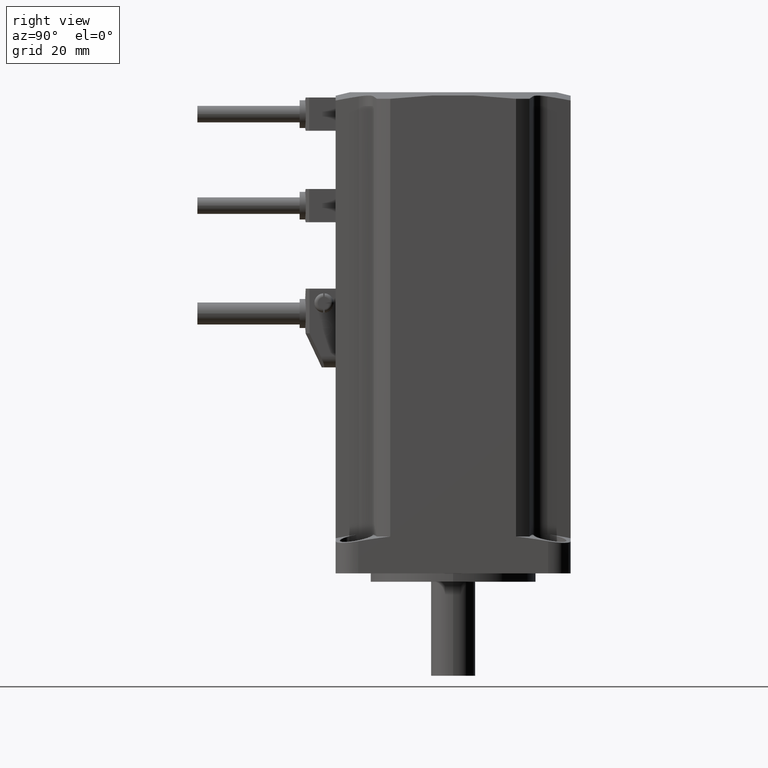
[diagram: clean part render]
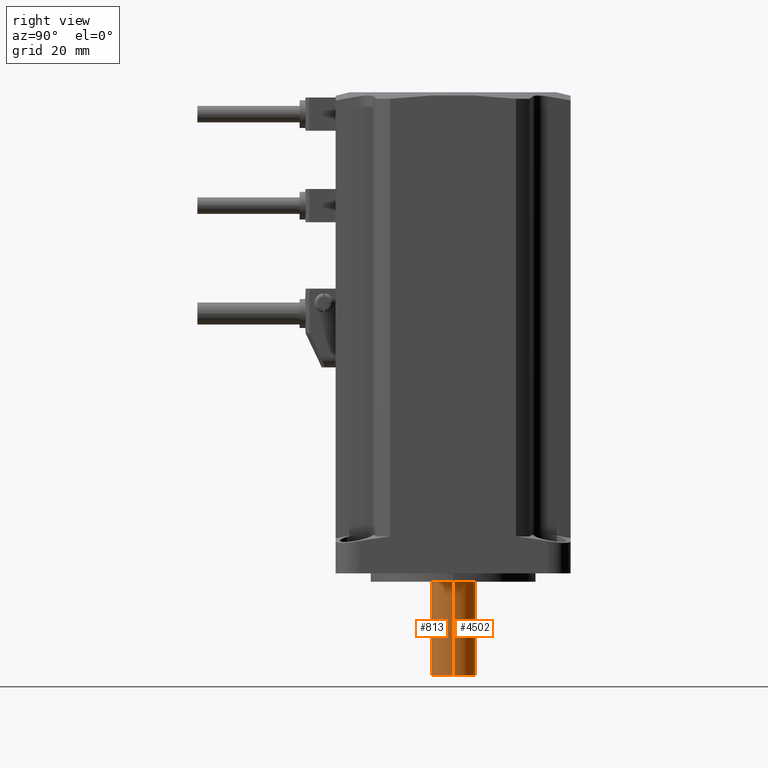
[diagram: same view with one multi-face feature highlighted, each face labeled with its STEP entity id]
A machine part, right view. The highlighted faces form ONE feature: a constant-radius fillet chain: 2 tangent blend faces with common blend radius 8 mm. The faces share edges in the B-rep.
Their STEP definitions:
[1] entity #813 (Cylinder):
#60 = CARTESIAN_POINT ( 'NONE',  ( 7.999999999999992895, 9.797174393178817769E-16, -37.00000000000000000 ) ) ;
#80 = LINE ( 'NONE', #4063, #1380 ) ;
#174 = EDGE_CURVE ( 'NONE', #2066, #3979, #2202, .T. ) ;
#230 = VERTEX_POINT ( 'NONE', #2672 ) ;
#255 = ORIENTED_EDGE ( 'NONE', *, *, #1441, .F. ) ;
#362 = ORIENTED_EDGE ( 'NONE', *, *, #3194, .T. ) ;
#552 = CARTESIAN_POINT ( 'NONE',  ( 0.0000000000000000000, 0.0000000000000000000, -3.000000000000002665 ) ) ;
#677 = DIRECTION ( 'NONE',  ( -1.000000000000000000, 0.0000000000000000000, 0.0000000000000000000 ) ) ;
#722 = DIRECTION ( 'NONE',  ( -0.0000000000000000000, -0.0000000000000000000, -1.000000000000000000 ) ) ;
#813 = ADVANCED_FACE ( 'NONE', ( #2717 ), #1077, .T. ) ;
#1004 = DIRECTION ( 'NONE',  ( 1.000000000000000000, 0.0000000000000000000, 0.0000000000000000000 ) ) ;
#1043 = DIRECTION ( 'NONE',  ( -1.000000000000000000, 0.0000000000000000000, 0.0000000000000000000 ) ) ;
#1054 = CIRCLE ( 'NONE', #3583, 7.999999999999992895 ) ;
#1077 = CYLINDRICAL_SURFACE ( 'NONE', #3373, 7.999999999999992895 ) ;
#1380 = VECTOR ( 'NONE', #4091, 1000.000000000000000 ) ;
#1381 = LINE ( 'NONE', #3472, #1444 ) ;
#1441 = EDGE_CURVE ( 'NONE', #3979, #3446, #1381, .T. ) ;
#1444 = VECTOR ( 'NONE', #2624, 1000.000000000000000 ) ;
#2066 = VERTEX_POINT ( 'NONE', #2391 ) ;
#2202 = CIRCLE ( 'NONE', #2966, 7.999999999999992895 ) ;
#2391 = CARTESIAN_POINT ( 'NONE',  ( -7.999999999999992895, 0.0000000000000000000, -3.000000000000002665 ) ) ;
#2459 = ORIENTED_EDGE ( 'NONE', *, *, #4158, .F. ) ;
#2624 = DIRECTION ( 'NONE',  ( -0.0000000000000000000, -0.0000000000000000000, -1.000000000000000000 ) ) ;
#2672 = CARTESIAN_POINT ( 'NONE',  ( -7.999999999999992895, 0.0000000000000000000, -37.00000000000000000 ) ) ;
#2693 = CARTESIAN_POINT ( 'NONE',  ( 0.0000000000000000000, 0.0000000000000000000, -52.95858389667363042 ) ) ;
#2717 = FACE_OUTER_BOUND ( 'NONE', #2944, .T. ) ;
#2944 = EDGE_LOOP ( 'NONE', ( #255, #4543, #362, #2459 ) ) ;
#2966 = AXIS2_PLACEMENT_3D ( 'NONE', #552, #3759, #1004 ) ;
#3194 = EDGE_CURVE ( 'NONE', #2066, #230, #80, .T. ) ;
#3373 = AXIS2_PLACEMENT_3D ( 'NONE', #2693, #4313, #677 ) ;
#3446 = VERTEX_POINT ( 'NONE', #60 ) ;
#3472 = CARTESIAN_POINT ( 'NONE',  ( 7.999999999999992895, 9.797174393178817769E-16, -52.95858389667363042 ) ) ;
#3583 = AXIS2_PLACEMENT_3D ( 'NONE', #4676, #722, #1043 ) ;
#3759 = DIRECTION ( 'NONE',  ( 0.0000000000000000000, 0.0000000000000000000, 1.000000000000000000 ) ) ;
#3979 = VERTEX_POINT ( 'NONE', #4089 ) ;
#4063 = CARTESIAN_POINT ( 'NONE',  ( -7.999999999999992895, 0.0000000000000000000, -52.95858389667363042 ) ) ;
#4089 = CARTESIAN_POINT ( 'NONE',  ( 7.999999999999992895, 9.797174393178817769E-16, -3.000000000000002665 ) ) ;
#4091 = DIRECTION ( 'NONE',  ( -0.0000000000000000000, -0.0000000000000000000, -1.000000000000000000 ) ) ;
#4158 = EDGE_CURVE ( 'NONE', #3446, #230, #1054, .T. ) ;
#4313 = DIRECTION ( 'NONE',  ( -0.0000000000000000000, -0.0000000000000000000, -1.000000000000000000 ) ) ;
#4543 = ORIENTED_EDGE ( 'NONE', *, *, #174, .F. ) ;
#4676 = CARTESIAN_POINT ( 'NONE',  ( 0.0000000000000000000, 0.0000000000000000000, -37.00000000000000000 ) ) ;
[2] entity #4502 (Cylinder):
#60 = CARTESIAN_POINT ( 'NONE',  ( 7.999999999999992895, 9.797174393178817769E-16, -37.00000000000000000 ) ) ;
#80 = LINE ( 'NONE', #4063, #1380 ) ;
#192 = CARTESIAN_POINT ( 'NONE',  ( 0.0000000000000000000, 0.0000000000000000000, -37.00000000000000000 ) ) ;
#230 = VERTEX_POINT ( 'NONE', #2672 ) ;
#301 = AXIS2_PLACEMENT_3D ( 'NONE', #991, #4221, #2197 ) ;
#352 = ORIENTED_EDGE ( 'NONE', *, *, #1441, .T. ) ;
#560 = FACE_OUTER_BOUND ( 'NONE', #3965, .T. ) ;
#607 = AXIS2_PLACEMENT_3D ( 'NONE', #192, #4294, #1792 ) ;
#991 = CARTESIAN_POINT ( 'NONE',  ( 0.0000000000000000000, 0.0000000000000000000, -52.95858389667363042 ) ) ;
#1334 = ORIENTED_EDGE ( 'NONE', *, *, #2367, .F. ) ;
#1380 = VECTOR ( 'NONE', #4091, 1000.000000000000000 ) ;
#1381 = LINE ( 'NONE', #3472, #1444 ) ;
#1441 = EDGE_CURVE ( 'NONE', #3979, #3446, #1381, .T. ) ;
#1444 = VECTOR ( 'NONE', #2624, 1000.000000000000000 ) ;
#1460 = AXIS2_PLACEMENT_3D ( 'NONE', #3500, #5126, #3926 ) ;
#1535 = CIRCLE ( 'NONE', #607, 7.999999999999992895 ) ;
#1590 = ORIENTED_EDGE ( 'NONE', *, *, #2731, .F. ) ;
#1792 = DIRECTION ( 'NONE',  ( -1.000000000000000000, 0.0000000000000000000, 0.0000000000000000000 ) ) ;
#2066 = VERTEX_POINT ( 'NONE', #2391 ) ;
#2197 = DIRECTION ( 'NONE',  ( -1.000000000000000000, 0.0000000000000000000, 0.0000000000000000000 ) ) ;
#2367 = EDGE_CURVE ( 'NONE', #3979, #2066, #2556, .T. ) ;
#2391 = CARTESIAN_POINT ( 'NONE',  ( -7.999999999999992895, 0.0000000000000000000, -3.000000000000002665 ) ) ;
#2556 = CIRCLE ( 'NONE', #1460, 7.999999999999992895 ) ;
#2624 = DIRECTION ( 'NONE',  ( -0.0000000000000000000, -0.0000000000000000000, -1.000000000000000000 ) ) ;
#2672 = CARTESIAN_POINT ( 'NONE',  ( -7.999999999999992895, 0.0000000000000000000, -37.00000000000000000 ) ) ;
#2731 = EDGE_CURVE ( 'NONE', #230, #3446, #1535, .T. ) ;
#3194 = EDGE_CURVE ( 'NONE', #2066, #230, #80, .T. ) ;
#3446 = VERTEX_POINT ( 'NONE', #60 ) ;
#3472 = CARTESIAN_POINT ( 'NONE',  ( 7.999999999999992895, 9.797174393178817769E-16, -52.95858389667363042 ) ) ;
#3500 = CARTESIAN_POINT ( 'NONE',  ( 0.0000000000000000000, 0.0000000000000000000, -3.000000000000002665 ) ) ;
#3926 = DIRECTION ( 'NONE',  ( 1.000000000000000000, 0.0000000000000000000, 0.0000000000000000000 ) ) ;
#3965 = EDGE_LOOP ( 'NONE', ( #1334, #352, #1590, #4524 ) ) ;
#3979 = VERTEX_POINT ( 'NONE', #4089 ) ;
#4063 = CARTESIAN_POINT ( 'NONE',  ( -7.999999999999992895, 0.0000000000000000000, -52.95858389667363042 ) ) ;
#4089 = CARTESIAN_POINT ( 'NONE',  ( 7.999999999999992895, 9.797174393178817769E-16, -3.000000000000002665 ) ) ;
#4091 = DIRECTION ( 'NONE',  ( -0.0000000000000000000, -0.0000000000000000000, -1.000000000000000000 ) ) ;
#4221 = DIRECTION ( 'NONE',  ( -0.0000000000000000000, -0.0000000000000000000, -1.000000000000000000 ) ) ;
#4294 = DIRECTION ( 'NONE',  ( -0.0000000000000000000, -0.0000000000000000000, -1.000000000000000000 ) ) ;
#4502 = ADVANCED_FACE ( 'NONE', ( #560 ), #4624, .T. ) ;
#4524 = ORIENTED_EDGE ( 'NONE', *, *, #3194, .F. ) ;
#4624 = CYLINDRICAL_SURFACE ( 'NONE', #301, 7.999999999999992895 ) ;
#5126 = DIRECTION ( 'NONE',  ( 0.0000000000000000000, 0.0000000000000000000, 1.000000000000000000 ) ) ;